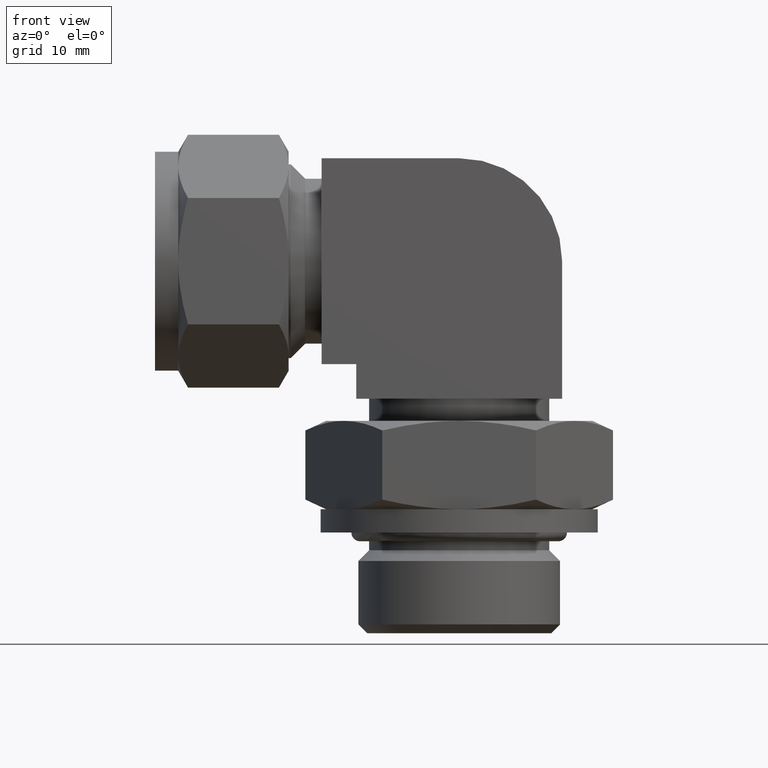
[diagram: clean part render]
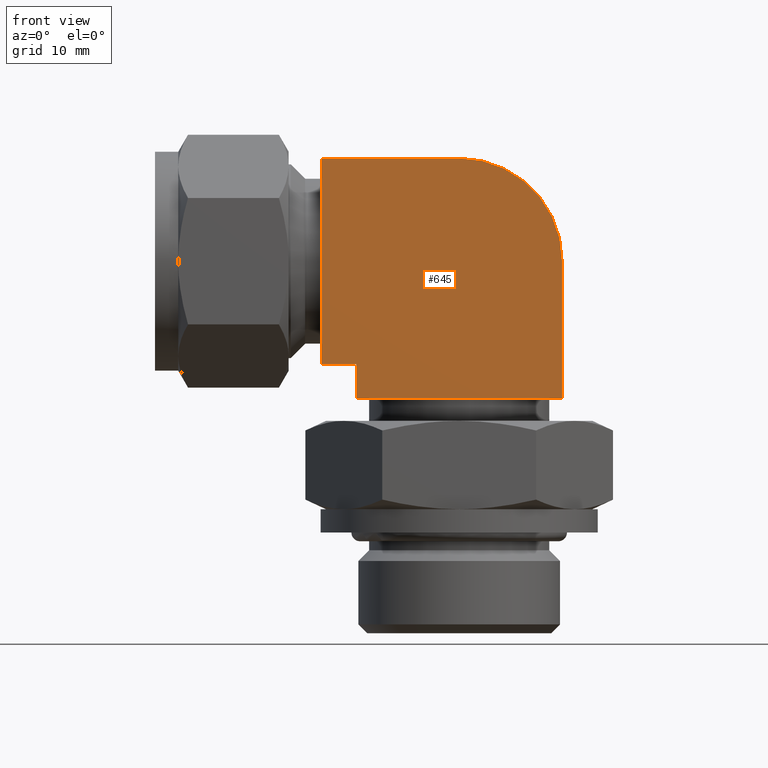
[diagram: same view with one face highlighted and labeled with its STEP entity id]
A machine part, front view. The second image highlights one B-rep face of the part: STEP entity #645.
In plain terms, the highlighted planar face has unit normal (-0, 1, 0).
Its self-contained STEP definition (entity closure, byte-faithful):
#56 = VERTEX_POINT ( 'NONE', #2141 ) ;
#61 = EDGE_LOOP ( 'NONE', ( #1080, #98, #939, #1584, #1145, #516, #582 ) ) ;
#64 = CARTESIAN_POINT ( 'NONE',  ( 39.87800000000000011, -13.49375000000000036, -18.03400000000000247 ) ) ;
#98 = ORIENTED_EDGE ( 'NONE', *, *, #197, .T. ) ;
#197 = EDGE_CURVE ( 'NONE', #1495, #1319, #1074, .T. ) ;
#207 = CARTESIAN_POINT ( 'NONE',  ( 26.38425000000000153, -13.49375000000000036, -9.017000000000001236 ) ) ;
#219 = EDGE_CURVE ( 'NONE', #345, #1319, #1274, .T. ) ;
#254 = LINE ( 'NONE', #1819, #2202 ) ;
#265 = VERTEX_POINT ( 'NONE', #314 ) ;
#270 = VECTOR ( 'NONE', #2199, 1000.000000000000000 ) ;
#313 = VECTOR ( 'NONE', #679, 1000.000000000000000 ) ;
#314 = CARTESIAN_POINT ( 'NONE',  ( 53.37175000000000580, -13.49375000000000036, -18.03400000000000247 ) ) ;
#345 = VERTEX_POINT ( 'NONE', #2097 ) ;
#365 = CIRCLE ( 'NONE', #683, 13.49374999999999858 ) ;
#379 = CARTESIAN_POINT ( 'NONE',  ( 39.87800000000000011, -13.49375000000000036, 2.478679798033609887E-15 ) ) ;
#392 = DIRECTION ( 'NONE',  ( 0.000000000000000000, 0.000000000000000000, -1.000000000000000000 ) ) ;
#516 = ORIENTED_EDGE ( 'NONE', *, *, #2213, .F. ) ;
#582 = ORIENTED_EDGE ( 'NONE', *, *, #1739, .T. ) ;
#645 = ADVANCED_FACE ( 'NONE', ( #1665 ), #2390, .F. ) ;
#655 = CARTESIAN_POINT ( 'NONE',  ( 21.84399999999999764, -13.49375000000000036, -13.49375000000000036 ) ) ;
#658 = DIRECTION ( 'NONE',  ( 1.000000000000000000, 0.000000000000000000, 0.000000000000000000 ) ) ;
#679 = DIRECTION ( 'NONE',  ( 0.000000000000000000, 0.000000000000000000, -1.000000000000000000 ) ) ;
#683 = AXIS2_PLACEMENT_3D ( 'NONE', #379, #1706, #2437 ) ;
#702 = CARTESIAN_POINT ( 'NONE',  ( 26.38425000000000153, -13.49375000000000036, -18.03400000000000247 ) ) ;
#731 = VECTOR ( 'NONE', #1620, 1000.000000000000000 ) ;
#836 = DIRECTION ( 'NONE',  ( -1.000000000000000000, 0.000000000000000000, 0.000000000000000000 ) ) ;
#896 = CARTESIAN_POINT ( 'NONE',  ( 30.86100000000000065, -13.49375000000000036, 0.000000000000000000 ) ) ;
#939 = ORIENTED_EDGE ( 'NONE', *, *, #219, .F. ) ;
#970 = EDGE_CURVE ( 'NONE', #1495, #56, #254, .T. ) ;
#1038 = VERTEX_POINT ( 'NONE', #702 ) ;
#1044 = DIRECTION ( 'NONE',  ( 1.000000000000000000, 0.000000000000000000, 0.000000000000000000 ) ) ;
#1048 = CARTESIAN_POINT ( 'NONE',  ( 21.84399999999999764, -13.49375000000000036, 0.000000000000000000 ) ) ;
#1074 = LINE ( 'NONE', #1048, #313 ) ;
#1080 = ORIENTED_EDGE ( 'NONE', *, *, #970, .F. ) ;
#1145 = ORIENTED_EDGE ( 'NONE', *, *, #2059, .F. ) ;
#1196 = LINE ( 'NONE', #2177, #731 ) ;
#1252 = VECTOR ( 'NONE', #392, 1000.000000000000000 ) ;
#1274 = LINE ( 'NONE', #1629, #270 ) ;
#1319 = VERTEX_POINT ( 'NONE', #655 ) ;
#1495 = VERTEX_POINT ( 'NONE', #2420 ) ;
#1584 = ORIENTED_EDGE ( 'NONE', *, *, #2140, .T. ) ;
#1620 = DIRECTION ( 'NONE',  ( 0.000000000000000000, 0.000000000000000000, -1.000000000000000000 ) ) ;
#1629 = CARTESIAN_POINT ( 'NONE',  ( 30.86100000000000065, -13.49375000000000036, -13.49375000000000036 ) ) ;
#1665 = FACE_OUTER_BOUND ( 'NONE', #61, .T. ) ;
#1706 = DIRECTION ( 'NONE',  ( 8.927365502442299915E-46, -1.000000000000000000, 1.836909530733569832E-16 ) ) ;
#1739 = EDGE_CURVE ( 'NONE', #1958, #56, #365, .T. ) ;
#1792 = LINE ( 'NONE', #64, #2003 ) ;
#1819 = CARTESIAN_POINT ( 'NONE',  ( 30.86100000000000065, -13.49375000000000036, 13.49375000000000036 ) ) ;
#1958 = VERTEX_POINT ( 'NONE', #2018 ) ;
#1991 = DIRECTION ( 'NONE',  ( -0.000000000000000000, 1.000000000000000000, 0.000000000000000000 ) ) ;
#2003 = VECTOR ( 'NONE', #836, 1000.000000000000000 ) ;
#2018 = CARTESIAN_POINT ( 'NONE',  ( 53.37175000000000580, -13.49375000000000036, 0.000000000000000000 ) ) ;
#2059 = EDGE_CURVE ( 'NONE', #265, #1038, #1792, .T. ) ;
#2097 = CARTESIAN_POINT ( 'NONE',  ( 26.38425000000000153, -13.49375000000000036, -13.49375000000000036 ) ) ;
#2140 = EDGE_CURVE ( 'NONE', #345, #1038, #2279, .T. ) ;
#2141 = CARTESIAN_POINT ( 'NONE',  ( 39.87800000000000011, -13.49375000000000036, 13.49375000000000036 ) ) ;
#2177 = CARTESIAN_POINT ( 'NONE',  ( 53.37175000000000580, -13.49375000000000036, -9.017000000000001236 ) ) ;
#2199 = DIRECTION ( 'NONE',  ( -1.000000000000000000, 0.000000000000000000, 0.000000000000000000 ) ) ;
#2202 = VECTOR ( 'NONE', #658, 1000.000000000000000 ) ;
#2213 = EDGE_CURVE ( 'NONE', #1958, #265, #1196, .T. ) ;
#2279 = LINE ( 'NONE', #207, #1252 ) ;
#2283 = AXIS2_PLACEMENT_3D ( 'NONE', #896, #1991, #1044 ) ;
#2390 = PLANE ( 'NONE',  #2283 ) ;
#2420 = CARTESIAN_POINT ( 'NONE',  ( 21.84399999999999764, -13.49375000000000036, 13.49375000000000036 ) ) ;
#2437 = DIRECTION ( 'NONE',  ( 1.000000000000000000, 0.000000000000000000, -1.250159616381210106E-15 ) ) ;